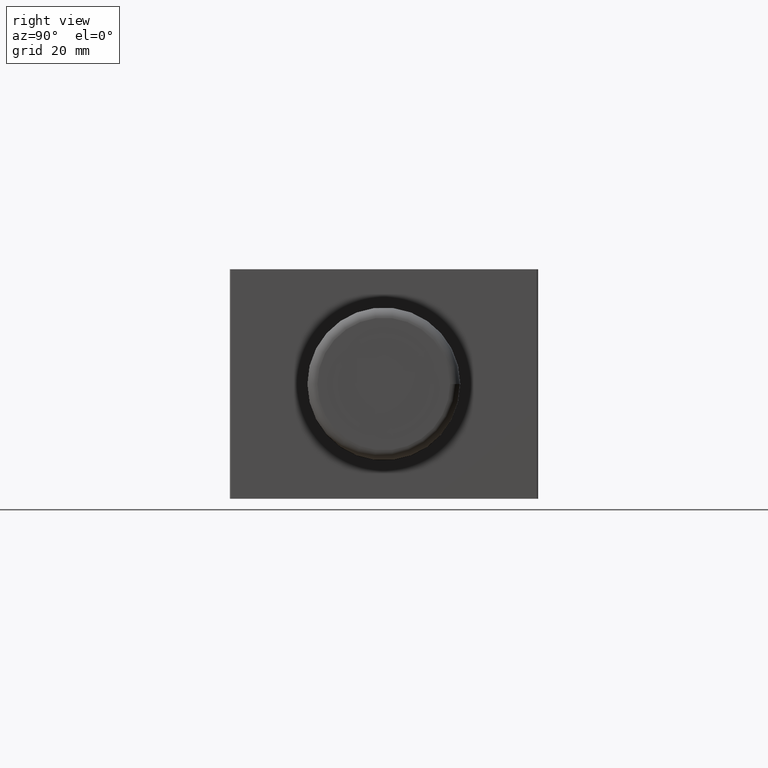
[diagram: clean part render]
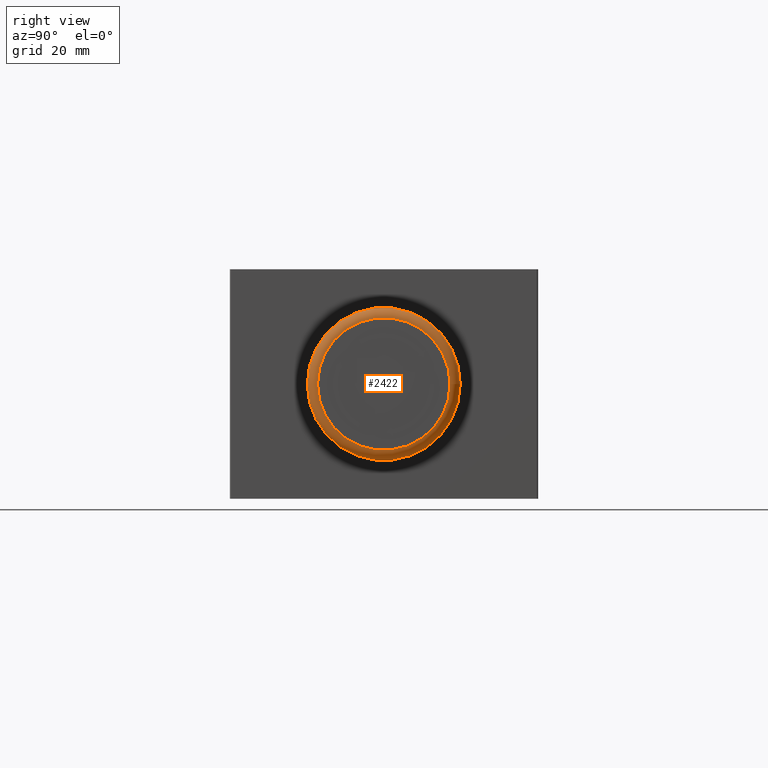
[diagram: same view with one face highlighted and labeled with its STEP entity id]
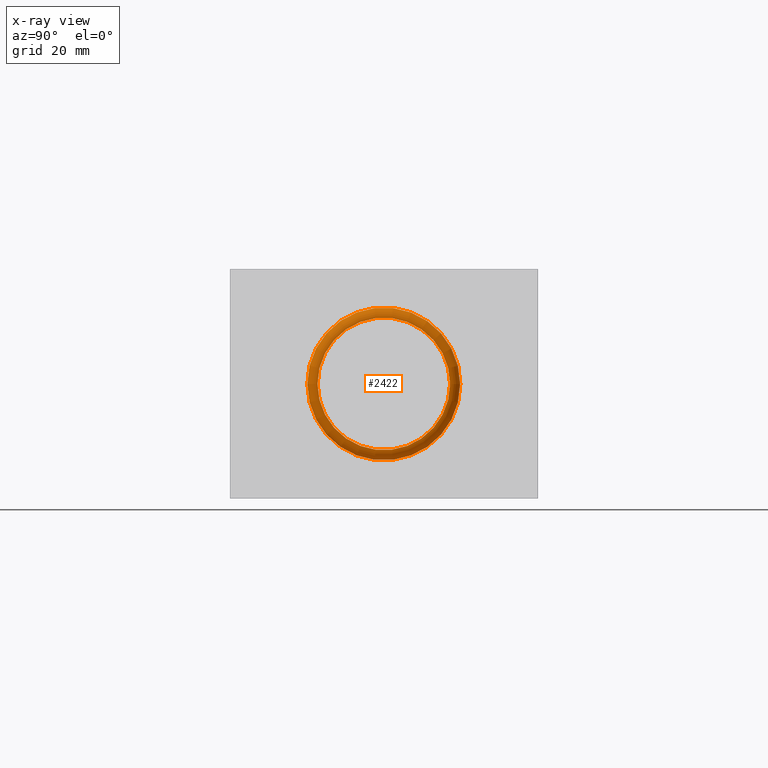
[diagram: x-ray of the same camera — body ghosted, the highlighted face saturated]
A machine part, right view. The second image highlights one B-rep face of the part: STEP entity #2422.
The next image is the same camera in x-ray: the body ghosted, the highlighted face saturated — about 0% of this face is hidden behind the body in this view.
In plain terms, the highlighted toroidal blend (fillet) surface has major radius 13 mm and minor (blend) radius 2 mm.
Its self-contained STEP definition (entity closure, byte-faithful):
#2388=CARTESIAN_POINT('',(19.079731840454762,16.129839215727507,0.0));
#2389=VERTEX_POINT('',#2388);
#2390=CARTESIAN_POINT('',(19.079731840454762,1.129839215727505,0.0));
#2391=DIRECTION('',(1.0,0.0,0.0));
#2392=DIRECTION('',(0.0,1.0,0.0));
#2393=AXIS2_PLACEMENT_3D('',#2390,#2391,#2392);
#2394=CIRCLE('',#2393,15.000000000000004);
#2395=EDGE_CURVE('',#2389,#2389,#2394,.T.);
#2403=CARTESIAN_POINT('',(19.079731840454762,1.129839215727504,0.0));
#2404=DIRECTION('',(1.0,0.0,0.0));
#2405=DIRECTION('',(0.0,0.0,-1.0));
#2406=AXIS2_PLACEMENT_3D('',#2403,#2404,#2405);
#2407=TOROIDAL_SURFACE('',#2406,13.000000000000005,2.000000000000000);
#2408=CARTESIAN_POINT('',(21.079731840454762,14.129839215727511,0.0));
#2409=VERTEX_POINT('',#2408);
#2410=CARTESIAN_POINT('',(21.079731840454766,1.129839215727505,0.0));
#2411=DIRECTION('',(1.0,0.0,0.0));
#2412=DIRECTION('',(0.0,1.0,0.0));
#2413=AXIS2_PLACEMENT_3D('',#2410,#2411,#2412);
#2414=CIRCLE('',#2413,13.000000000000007);
#2415=EDGE_CURVE('',#2409,#2409,#2414,.T.);
#2416=ORIENTED_EDGE('',*,*,#2415,.F.);
#2417=EDGE_LOOP('',(#2416));
#2418=FACE_OUTER_BOUND('',#2417,.T.);
#2419=ORIENTED_EDGE('',*,*,#2395,.T.);
#2420=EDGE_LOOP('',(#2419));
#2421=FACE_BOUND('',#2420,.T.);
#2422=ADVANCED_FACE('',(#2418,#2421),#2407,.T.);